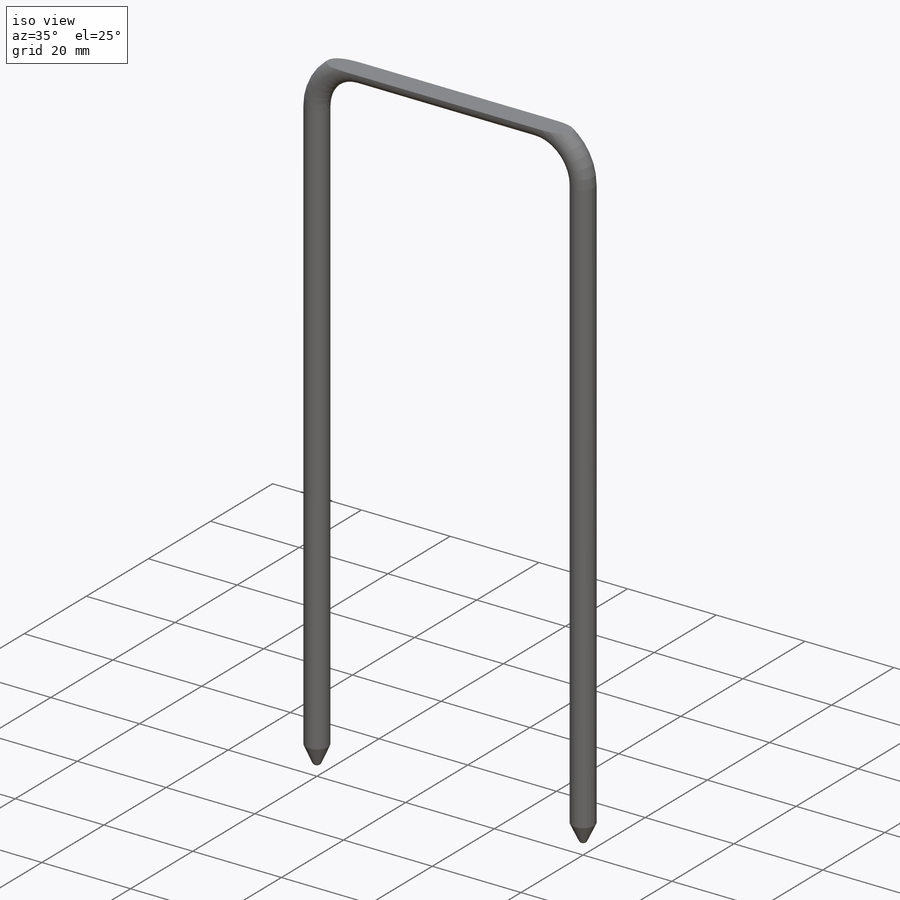
[diagram: iso view]
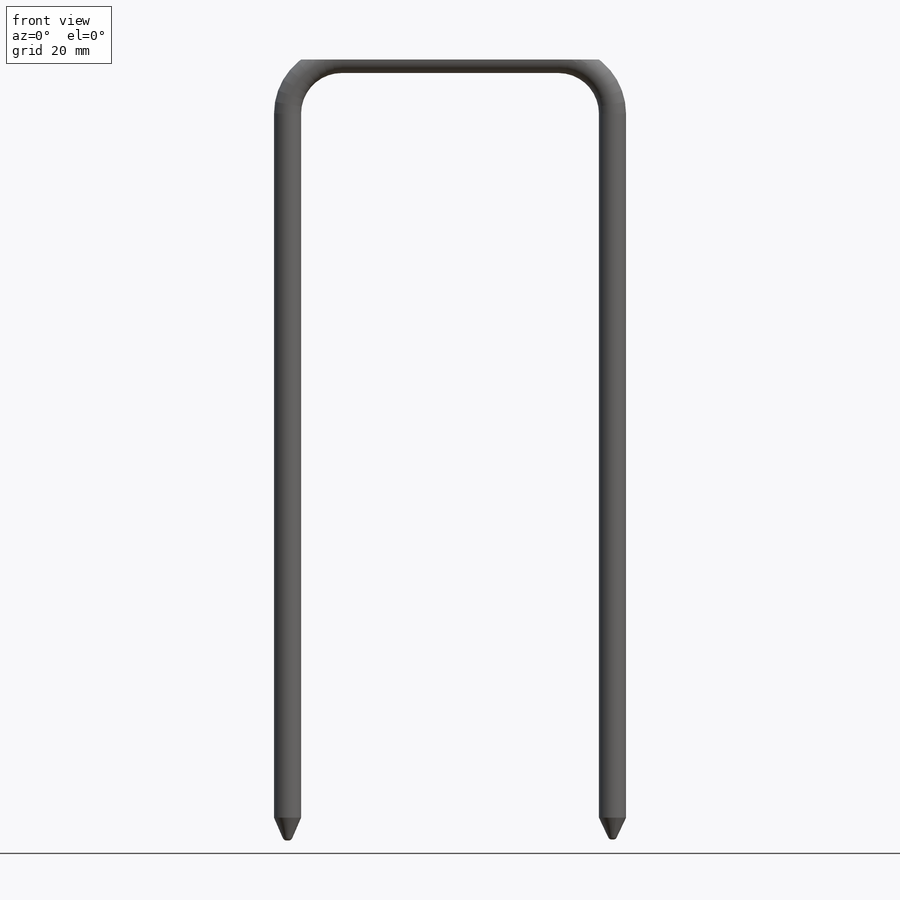
[diagram: front view]
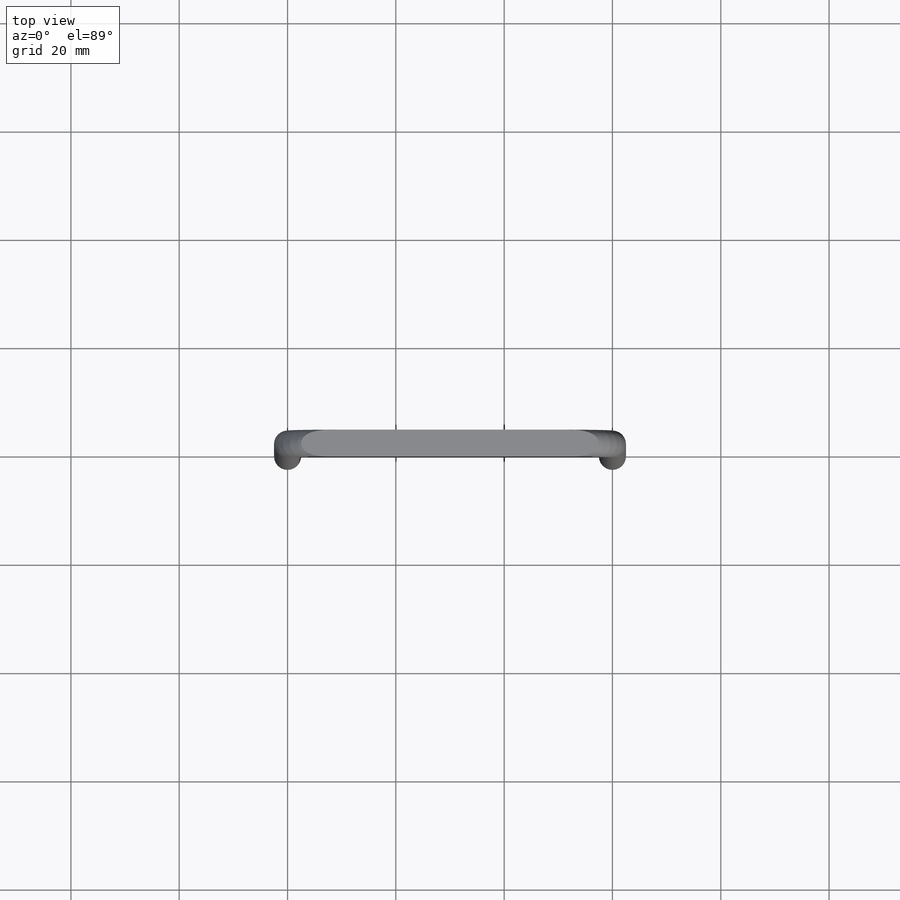
[diagram: top view]
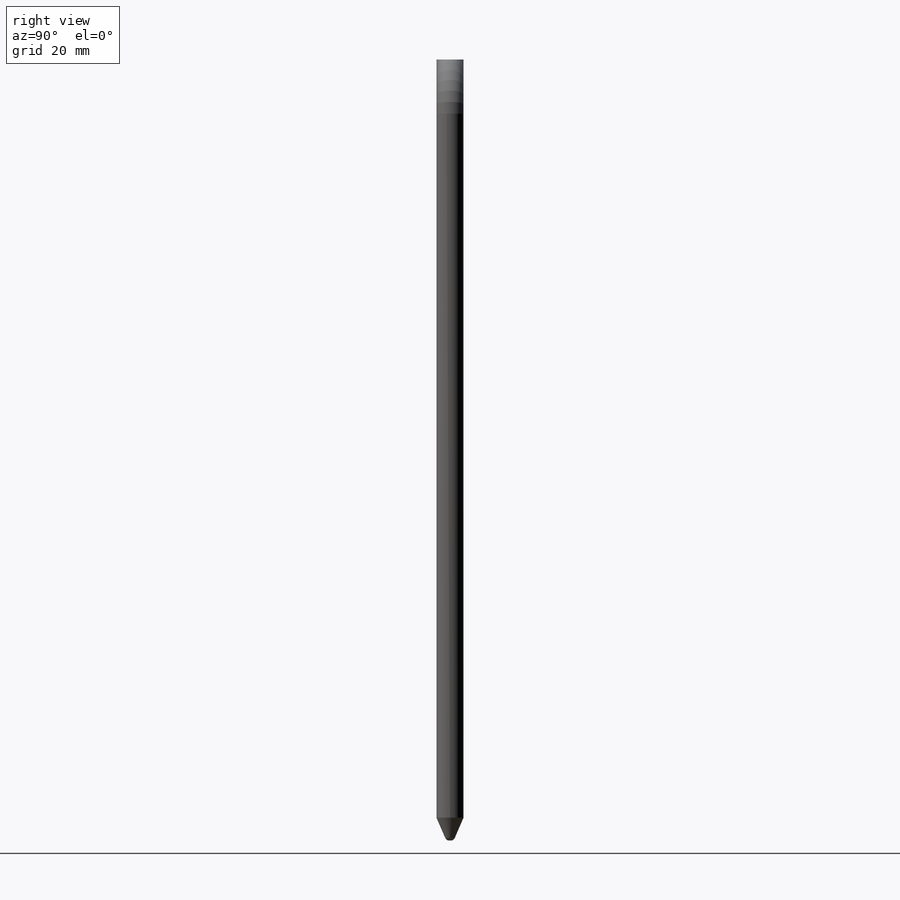
[diagram: right view]
SOLIDWORKS PART (.sldprt)
format: sldprt  version: not decoded by parser v0  size: 181,248 bytes
history: native  units: mm
features: sketch x5, revolve x2, material x1, sweep x1, plane x1, cut_extrude x1 (+13 scaffold rows collapsed)
feature tree (24):
  scaffold x13  (default folders/planes/origin — collapsed)
  material  "Material <not specified>"
  sketch  "Sketch3"  dims[D1=~12.516898mm]
  sketch  "Sketch4"  dims[D1=130.0mm D2=130.0mm]
  sweep  "Sweep1"
  sketch  "Sketch5"  dims[D1=4.2mm]
  revolve  "Revolve1"  Angle=360deg
  sketch  "Sketch6"  dims[D1=4.0mm]
  revolve  "Revolve2"  Angle=360deg
  plane  "Plane2"  Offset=10mm
  sketch  "Sketch7"
  cut_extrude  "Cut-Extrude1"  Depth=72mm
decode coverage: 7 of 9 modeling features carry decoded parameters
note: ~ marks probable driven/reference dimensions
note: suppression state not decoded; provenance and decode notes live in map.json
